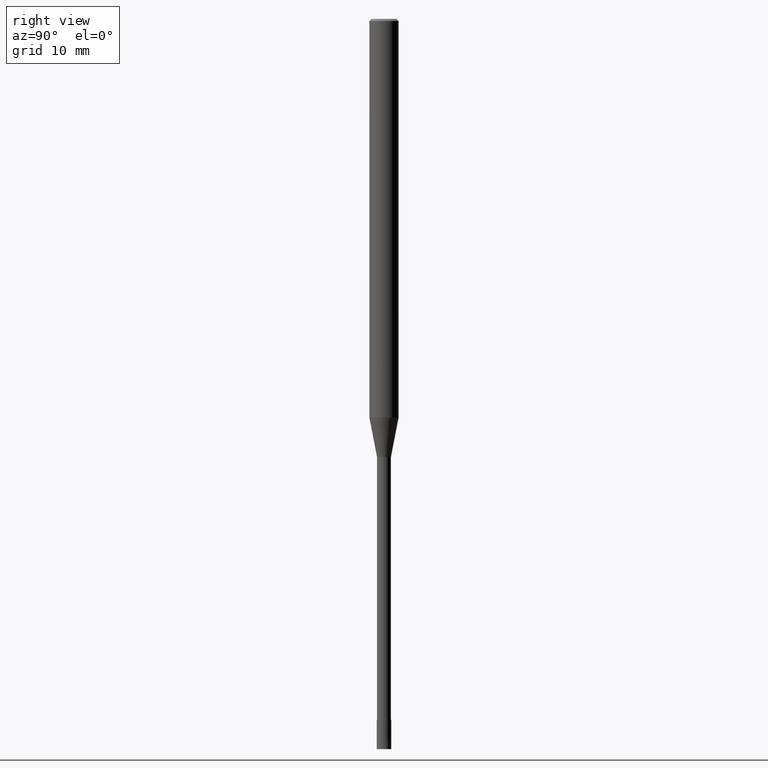
[diagram: clean part render]
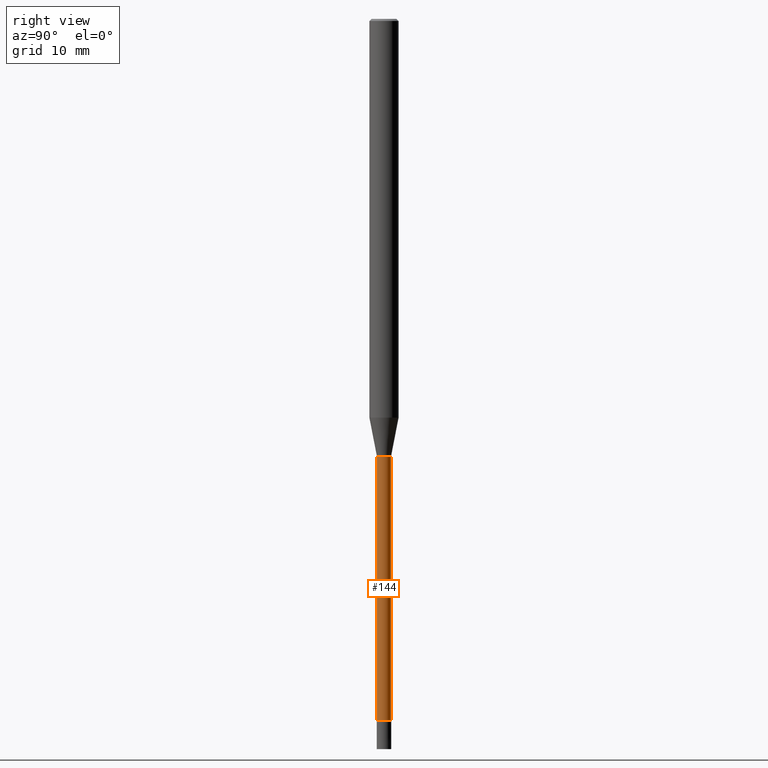
[diagram: same view with one face highlighted and labeled with its STEP entity id]
A machine part, right view. The second image highlights one B-rep face of the part: STEP entity #144.
In plain terms, the highlighted cylindrical surface (edge-blend (fillet) strip) has radius 0.9499 mm, axis along (-0, -0, 1).
Its self-contained STEP definition (entity closure, byte-faithful):
#106=EDGE_CURVE('',#176,#160,#244,.T.);
#120=EDGE_CURVE('',#138,#176,#261,.T.);
#136=VERTEX_POINT('',#280);
#138=VERTEX_POINT('',#282);
#144=ADVANCED_FACE('',(#288),#289,.T.);
#152=EDGE_CURVE('',#138,#136,#299,.T.);
#160=VERTEX_POINT('',#309);
#176=VERTEX_POINT('',#326);
#198=EDGE_CURVE('',#160,#136,#350,.T.);
#244=CIRCLE('',#398,0.94995);
#261=LINE('',#418,#419);
#280=CARTESIAN_POINT('',(1.16331480581357E-016,-0.94995,-60.0));
#282=CARTESIAN_POINT('',(0.0,0.94995,-60.0));
#288=FACE_OUTER_BOUND('',#451,.T.);
#289=CYLINDRICAL_SURFACE('',#452,0.94995);
#299=CIRCLE('',#463,0.94995);
#309=CARTESIAN_POINT('',(1.16331480581357E-016,-0.94995,-96.0));
#326=CARTESIAN_POINT('',(0.0,0.94995,-96.0));
#350=LINE('',#522,#523);
#398=AXIS2_PLACEMENT_3D('',#552,#553,#554);
#418=CARTESIAN_POINT('',(-1.16331480581357E-016,0.94995,-78.0));
#419=VECTOR('',#583,1.0);
#451=EDGE_LOOP('',(#619,#620,#621,#622));
#452=AXIS2_PLACEMENT_3D('',#623,#624,#625);
#463=AXIS2_PLACEMENT_3D('',#642,#643,#644);
#522=CARTESIAN_POINT('',(1.16331480581357E-016,-0.94995,-78.0));
#523=VECTOR('',#697,1.0);
#552=CARTESIAN_POINT('',(0.0,0.0,-96.0));
#553=DIRECTION('',(0.0,0.0,-1.0));
#554=DIRECTION('',(0.0,1.0,0.0));
#583=DIRECTION('',(0.0,0.0,-1.0));
#619=ORIENTED_EDGE('',*,*,#120,.F.);
#620=ORIENTED_EDGE('',*,*,#152,.T.);
#621=ORIENTED_EDGE('',*,*,#198,.F.);
#622=ORIENTED_EDGE('',*,*,#106,.F.);
#623=CARTESIAN_POINT('',(0.0,0.0,-78.0));
#624=DIRECTION('',(-0.0,-0.0,1.0));
#625=DIRECTION('',(0.0,1.0,0.0));
#642=CARTESIAN_POINT('',(0.0,0.0,-60.0));
#643=DIRECTION('',(0.0,0.0,-1.0));
#644=DIRECTION('',(0.0,1.0,0.0));
#697=DIRECTION('',(-0.0,-0.0,1.0));